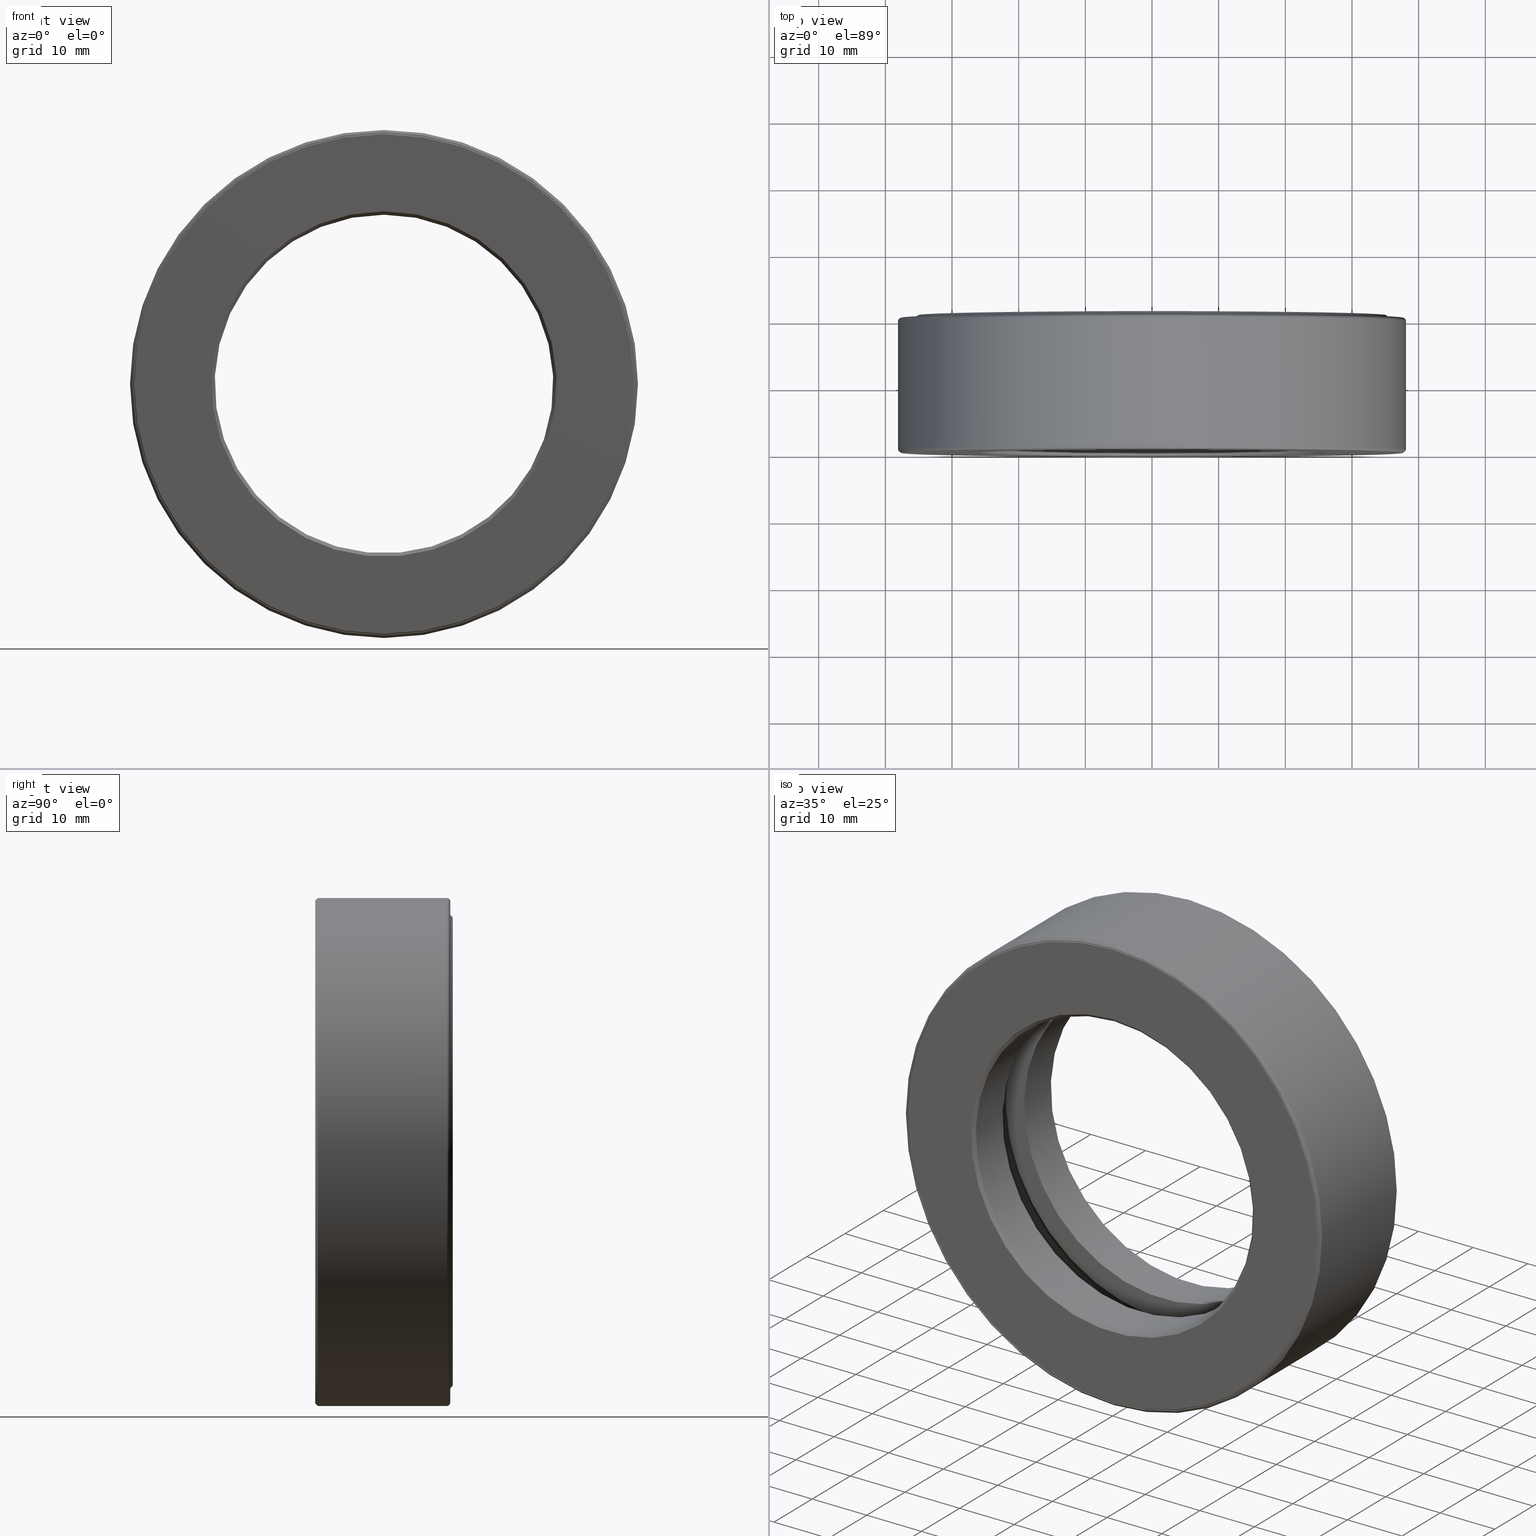
[diagram: canonical four-view strip — front | top / right | iso, engineering-drawing reading convention]
A machine part, canonical four-view strip (front | top / right | iso — engineering-drawing reading convention). The complete STEP part file that produces these views, byte-faithful:
ISO-10303-21;
HEADER;
FILE_DESCRIPTION (( 'STEP AP203' ),
    '1' );
FILE_NAME ('T-100-31.step',
    '2016-06-29T18:27:30',
    ( '' ),
    ( '' ),
    'SwSTEP 2.0',
    'SolidWorks 2016',
    '' );
FILE_SCHEMA (( 'CONFIG_CONTROL_DESIGN' ));
ENDSEC;

DATA;
#1 = CARTESIAN_POINT ( 'NONE',  ( 0.0000000000000000000, 0.4062499999999997800, 0.0000000000000000000 ) ) ;
#2 = AXIS2_PLACEMENT_3D ( 'NONE', #73, #299, #168 ) ;
#3 = VERTEX_POINT ( 'NONE', #367 ) ;
#4 = FACE_OUTER_BOUND ( 'NONE', #173, .T. ) ;
#5 = ORIENTED_EDGE ( 'NONE', *, *, #339, .T. ) ;
#6 = CARTESIAN_POINT ( 'NONE',  ( 0.0000000000000000000, -8.312292382913186900E-017, 0.0000000000000000000 ) ) ;
#7 = ADVANCED_FACE ( 'NONE', ( #489, #521 ), #383, .T. ) ;
#8 = EDGE_LOOP ( 'NONE', ( #469 ) ) ;
#9 = EDGE_CURVE ( 'NONE', #210, #210, #354, .T. ) ;
#10 = DIRECTION ( 'NONE',  ( -0.0000000000000000000, 1.000000000000000000, -0.0000000000000000000 ) ) ;
#11 = FACE_BOUND ( 'NONE', #212, .T. ) ;
#12 = ADVANCED_FACE ( 'NONE', ( #256, #128 ), #301, .T. ) ;
#13 = EDGE_LOOP ( 'NONE', ( #587 ) ) ;
#14 = AXIS2_PLACEMENT_3D ( 'NONE', #453, #305, #446 ) ;
#15 = EDGE_CURVE ( 'NONE', #3, #3, #508, .T. ) ;
#16 = VERTEX_POINT ( 'NONE', #499 ) ;
#17 = EDGE_LOOP ( 'NONE', ( #285 ) ) ;
#18 = ORIENTED_EDGE ( 'NONE', *, *, #455, .F. ) ;
#19 = DIRECTION ( 'NONE',  ( 0.0000000000000000000, 0.0000000000000000000, 1.000000000000000000 ) ) ;
#20 = AXIS2_PLACEMENT_3D ( 'NONE', #253, #321, #125 ) ;
#21 =( NAMED_UNIT ( * ) SI_UNIT ( $, .STERADIAN. ) SOLID_ANGLE_UNIT ( ) );
#22 = DIRECTION ( 'NONE',  ( 0.0000000000000000000, 0.0000000000000000000, 1.000000000000000000 ) ) ;
#23 = VERTEX_POINT ( 'NONE', #115 ) ;
#24 = FACE_BOUND ( 'NONE', #490, .T. ) ;
#25 =( LENGTH_UNIT ( ) NAMED_UNIT ( * ) SI_UNIT ( $, .METRE. ) );
#26 = CARTESIAN_POINT ( 'NONE',  ( 0.0000000000000000000, 0.5187499999999997100, 0.0000000000000000000 ) ) ;
#27 = ORIENTED_EDGE ( 'NONE', *, *, #546, .F. ) ;
#28 = DIRECTION ( 'NONE',  ( 0.0000000000000000000, 0.0000000000000000000, 1.000000000000000000 ) ) ;
#29 = DATE_TIME_ROLE ( 'classification_date' ) ;
#30 = CARTESIAN_POINT ( 'NONE',  ( 0.0000000000000000000, -8.216886543443291800E-017, 0.0000000000000000000 ) ) ;
#31 = APPROVAL_PERSON_ORGANIZATION ( #566, #515, #297 ) ;
#32 = DIRECTION ( 'NONE',  ( -0.0000000000000000000, 1.000000000000000000, -0.0000000000000000000 ) ) ;
#33 = ORIENTED_EDGE ( 'NONE', *, *, #105, .T. ) ;
#34 = AXIS2_PLACEMENT_3D ( 'NONE', #36, #252, #510 ) ;
#35 = EDGE_LOOP ( 'NONE', ( #265 ) ) ;
#36 = CARTESIAN_POINT ( 'NONE',  ( 0.0000000000000000000, 0.8125000000000000000, 0.0000000000000000000 ) ) ;
#37 = VERTEX_POINT ( 'NONE', #178 ) ;
#38 = TOROIDAL_SURFACE ( 'NONE', #476, 1.283499999999999900, 0.1874999999999999400 ) ;
#39 = CLOSED_SHELL ( 'NONE', ( #472, #182, #85, #278, #528, #50, #427, #332, #328, #524, #434, #382, #143, #55, #479, #189 ) ) ;
#40 = DIRECTION ( 'NONE',  ( 0.0000000000000000000, 0.0000000000000000000, 1.000000000000000000 ) ) ;
#41 = AXIS2_PLACEMENT_3D ( 'NONE', #356, #123, #69 ) ;
#42 = DIRECTION ( 'NONE',  ( -0.0000000000000000000, 1.000000000000000000, -0.0000000000000000000 ) ) ;
#43 = CARTESIAN_POINT ( 'NONE',  ( 0.0000000000000000000, 0.7774999999999998600, 1.420000000000000200 ) ) ;
#44 = ORIENTED_EDGE ( 'NONE', *, *, #346, .T. ) ;
#45 = EDGE_LOOP ( 'NONE', ( #344 ) ) ;
#46 = EDGE_CURVE ( 'NONE', #518, #518, #501, .T. ) ;
#47 = DIRECTION ( 'NONE',  ( -0.0000000000000000000, 1.000000000000000000, 0.0000000000000000000 ) ) ;
#48 = AXIS2_PLACEMENT_3D ( 'NONE', #572, #232, #576 ) ;
#49 = DIRECTION ( 'NONE',  ( 0.0000000000000000000, -1.000000000000000000, 0.0000000000000000000 ) ) ;
#50 = ADVANCED_FACE ( 'NONE', ( #422, #482 ), #461, .F. ) ;
#51 = ORGANIZATION ( 'UNSPECIFIED', 'UNSPECIFIED', '' ) ;
#52 = CIRCLE ( 'NONE', #396, 1.000000000000000000 ) ;
#53 = DIRECTION ( 'NONE',  ( 1.000000000000000000, 0.0000000000000000000, -1.047444401652939500E-014 ) ) ;
#54 = ORIENTED_EDGE ( 'NONE', *, *, #93, .F. ) ;
#55 = ADVANCED_FACE ( 'NONE', ( #567, #359 ), #227, .F. ) ;
#56 = EDGE_CURVE ( 'NONE', #156, #156, #349, .T. ) ;
#57 = CARTESIAN_POINT ( 'NONE',  ( 0.0000000000000000000, -8.323599355695802500E-017, 0.0000000000000000000 ) ) ;
#58 = PERSON_AND_ORGANIZATION ( #487, #51 ) ;
#59 = CIRCLE ( 'NONE', #277, 1.480000000000000000 ) ;
#60 = EDGE_LOOP ( 'NONE', ( #247 ) ) ;
#61 = AXIS2_PLACEMENT_3D ( 'NONE', #314, #415, #130 ) ;
#62 = EDGE_CURVE ( 'NONE', #440, #440, #179, .T. ) ;
#63 = FACE_OUTER_BOUND ( 'NONE', #35, .T. ) ;
#64 = CLOSED_SHELL ( 'NONE', ( #183 ) ) ;
#65 = CARTESIAN_POINT ( 'NONE',  ( 0.0000000000000000000, 6.829619984160658000E-017, 1.019999999999999800 ) ) ;
#66 = DIRECTION ( 'NONE',  ( -0.0000000000000000000, 1.000000000000000000, -0.0000000000000000000 ) ) ;
#67 = SHAPE_DEFINITION_REPRESENTATION ( #450, #529 ) ;
#68 = AXIS2_PLACEMENT_3D ( 'NONE', #421, #560, #464 ) ;
#69 = DIRECTION ( 'NONE',  ( 0.0000000000000000000, 0.0000000000000000000, 1.000000000000000000 ) ) ;
#70 = ORIENTED_EDGE ( 'NONE', *, *, #428, .T. ) ;
#71 = ORIENTED_EDGE ( 'NONE', *, *, #279, .T. ) ;
#72 = DIRECTION ( 'NONE',  ( -0.0000000000000000000, 1.000000000000000000, -0.0000000000000000000 ) ) ;
#73 = CARTESIAN_POINT ( 'NONE',  ( 0.0000000000000000000, 0.0000000000000000000, 0.0000000000000000000 ) ) ;
#74 = VERTEX_POINT ( 'NONE', #161 ) ;
#75 = FACE_OUTER_BOUND ( 'NONE', #135, .T. ) ;
#76 = AXIS2_PLACEMENT_3D ( 'NONE', #242, #389, #582 ) ;
#77 = EDGE_LOOP ( 'NONE', ( #509 ) ) ;
#78 = DIRECTION ( 'NONE',  ( 0.0000000000000000000, 0.0000000000000000000, 1.000000000000000000 ) ) ;
#79 = CARTESIAN_POINT ( 'NONE',  ( 1.122951057337007100E-033, -8.317945869304494700E-017, 0.0000000000000000000 ) ) ;
#80 = FACE_OUTER_BOUND ( 'NONE', #151, .T. ) ;
#81 = DATE_AND_TIME ( #380, #186 ) ;
#82 = EDGE_LOOP ( 'NONE', ( #552 ) ) ;
#83 = ORIENTED_EDGE ( 'NONE', *, *, #124, .F. ) ;
#84 = CARTESIAN_POINT ( 'NONE',  ( 0.0000000000000000000, 0.2937499999999999600, 1.133499999999999700 ) ) ;
#85 = ADVANCED_FACE ( 'NONE', ( #114, #192 ), #475, .F. ) ;
#86 = CARTESIAN_POINT ( 'NONE',  ( 0.0000000000000000000, 0.5187499999999997100, 1.472999999999999900 ) ) ;
#87 = AXIS2_PLACEMENT_3D ( 'NONE', #325, #90, #229 ) ;
#88 = CARTESIAN_POINT ( 'NONE',  ( 0.0000000000000000000, 0.02000000000000033300, 0.0000000000000000000 ) ) ;
#89 = VERTEX_POINT ( 'NONE', #549 ) ;
#90 = DIRECTION ( 'NONE',  ( 0.0000000000000000000, -1.000000000000000000, 0.0000000000000000000 ) ) ;
#91 = ORIENTED_EDGE ( 'NONE', *, *, #213, .F. ) ;
#92 = CLOSED_SHELL ( 'NONE', ( #225 ) ) ;
#93 = EDGE_CURVE ( 'NONE', #505, #505, #373, .T. ) ;
#94 = FACE_OUTER_BOUND ( 'NONE', #147, .T. ) ;
#95 = COORDINATED_UNIVERSAL_TIME_OFFSET ( 5, 0, .BEHIND. ) ;
#96 = PRODUCT ( 'T-100-31', 'T-100-31', '', ( #400 ) ) ;
#97 = ORIENTED_EDGE ( 'NONE', *, *, #56, .T. ) ;
#98 = CLOSED_SHELL ( 'NONE', ( #233 ) ) ;
#99 =( GEOMETRIC_REPRESENTATION_CONTEXT ( 3 ) GLOBAL_UNCERTAINTY_ASSIGNED_CONTEXT ( ( #195 ) ) GLOBAL_UNIT_ASSIGNED_CONTEXT ( ( #162, #241, #21 ) ) REPRESENTATION_CONTEXT ( 'NONE', 'WORKASPACE' ) );
#100 = DIRECTION ( 'NONE',  ( 0.0000000000000000000, 0.0000000000000000000, 1.000000000000000000 ) ) ;
#101 = DATE_AND_TIME ( #556, #369 ) ;
#102 = SPHERICAL_SURFACE ( 'NONE', #283, 0.1874999999999999400 ) ;
#103 = ORIENTED_EDGE ( 'NONE', *, *, #93, .T. ) ;
#104 = EDGE_LOOP ( 'NONE', ( #477 ) ) ;
#105 = EDGE_CURVE ( 'NONE', #37, #37, #59, .T. ) ;
#106 = DATE_TIME_ROLE ( 'creation_date' ) ;
#107 = CARTESIAN_POINT ( 'NONE',  ( 4.481316298405160600E-015, 0.4062499999999997800, 1.283499999999999900 ) ) ;
#108 = APPLICATION_CONTEXT ( 'configuration controlled 3d designs of mechanical parts and assemblies' ) ;
#109 = DIRECTION ( 'NONE',  ( 0.0000000000000000000, 0.0000000000000000000, 1.000000000000000000 ) ) ;
#110 = CARTESIAN_POINT ( 'NONE',  ( 0.0000000000000000000, 0.2937499999999999600, 0.0000000000000000000 ) ) ;
#111 = FACE_OUTER_BOUND ( 'NONE', #398, .T. ) ;
#112 = CARTESIAN_POINT ( 'NONE',  ( 0.0000000000000000000, 0.7245000000000004800, 0.0000000000000000000 ) ) ;
#113 = CIRCLE ( 'NONE', #438, 1.480000000000000000 ) ;
#114 = FACE_OUTER_BOUND ( 'NONE', #257, .T. ) ;
#115 = CARTESIAN_POINT ( 'NONE',  ( 0.0000000000000000000, 0.7974999999999998800, 1.480000000000000000 ) ) ;
#116 = CARTESIAN_POINT ( 'NONE',  ( 0.0000000000000000000, 0.0000000000000000000, 0.0000000000000000000 ) ) ;
#117 = CARTESIAN_POINT ( 'NONE',  ( 0.0000000000000000000, 0.7924999999999996500, 0.0000000000000000000 ) ) ;
#118 = DIRECTION ( 'NONE',  ( 0.0000000000000000000, 0.0000000000000000000, 1.000000000000000000 ) ) ;
#119 = AXIS2_PLACEMENT_3D ( 'NONE', #523, #49, #478 ) ;
#120 = CONICAL_SURFACE ( 'NONE', #532, 1.474999999999999600, 0.7853981633974469500 ) ;
#121 = EDGE_LOOP ( 'NONE', ( #311 ) ) ;
#122 = ORIENTED_EDGE ( 'NONE', *, *, #546, .T. ) ;
#123 = DIRECTION ( 'NONE',  ( -0.0000000000000000000, 1.000000000000000000, -0.0000000000000000000 ) ) ;
#124 = EDGE_CURVE ( 'NONE', #526, #526, #436, .T. ) ;
#125 = DIRECTION ( 'NONE',  ( 0.0000000000000000000, -0.0000000000000000000, -1.000000000000000000 ) ) ;
#126 = FACE_OUTER_BOUND ( 'NONE', #337, .T. ) ;
#127 = FACE_BOUND ( 'NONE', #437, .T. ) ;
#128 = FACE_OUTER_BOUND ( 'NONE', #17, .T. ) ;
#129 = DIRECTION ( 'NONE',  ( 0.0000000000000000000, 0.0000000000000000000, 1.000000000000000000 ) ) ;
#130 = DIRECTION ( 'NONE',  ( 0.0000000000000000000, 0.0000000000000000000, 1.000000000000000000 ) ) ;
#131 = AXIS2_PLACEMENT_3D ( 'NONE', #207, #307, #454 ) ;
#132 = DIRECTION ( 'NONE',  ( 0.0000000000000000000, 0.0000000000000000000, 1.000000000000000000 ) ) ;
#133 = VERTEX_POINT ( 'NONE', #588 ) ;
#134 = ADVANCED_FACE ( 'NONE', ( #217, #579 ), #142, .T. ) ;
#135 = EDGE_LOOP ( 'NONE', ( #604 ) ) ;
#136 = DIRECTION ( 'NONE',  ( -0.0000000000000000000, 1.000000000000000000, -0.0000000000000000000 ) ) ;
#137 = ORIENTED_EDGE ( 'NONE', *, *, #346, .F. ) ;
#138 = CARTESIAN_POINT ( 'NONE',  ( 0.0000000000000000000, -8.216886543443291800E-017, 1.474999999999999600 ) ) ;
#139 = DIRECTION ( 'NONE',  ( 0.0000000000000000000, 0.0000000000000000000, 1.000000000000000000 ) ) ;
#140 = ADVANCED_FACE ( 'NONE', ( #388, #302 ), #481, .F. ) ;
#141 = AXIS2_PLACEMENT_3D ( 'NONE', #463, #42, #174 ) ;
#142 = PLANE ( 'NONE',  #87 ) ;
#143 = ADVANCED_FACE ( 'NONE', ( #591, #534 ), #333, .F. ) ;
#144 = VERTEX_POINT ( 'NONE', #65 ) ;
#145 = FACE_OUTER_BOUND ( 'NONE', #413, .T. ) ;
#146 = APPROVAL_PERSON_ORGANIZATION ( #310, #525, #492 ) ;
#147 = EDGE_LOOP ( 'NONE', ( #83 ) ) ;
#148 = MANIFOLD_SOLID_BREP ( 'Revolve3', #92 ) ;
#149 = PERSON_AND_ORGANIZATION ( #487, #51 ) ;
#150 = ORIENTED_EDGE ( 'NONE', *, *, #364, .F. ) ;
#151 = EDGE_LOOP ( 'NONE', ( #180 ) ) ;
#152 = AXIS2_PLACEMENT_3D ( 'NONE', #26, #539, #239 ) ;
#153 = DIRECTION ( 'NONE',  ( 0.0000000000000000000, 0.0000000000000000000, -1.000000000000000000 ) ) ;
#154 = CARTESIAN_POINT ( 'NONE',  ( 0.0000000000000000000, 0.5187499999999997100, 1.133499999999999700 ) ) ;
#155 = DIRECTION ( 'NONE',  ( -3.491481338843131800E-015, 0.0000000000000000000, -1.000000000000000000 ) ) ;
#156 = VERTEX_POINT ( 'NONE', #563 ) ;
#157 = FACE_OUTER_BOUND ( 'NONE', #294, .T. ) ;
#158 = APPROVAL_ROLE ( '' ) ;
#159 = EDGE_LOOP ( 'NONE', ( #33 ) ) ;
#160 = CC_DESIGN_APPROVAL ( #417, ( #259 ) ) ;
#161 = CARTESIAN_POINT ( 'NONE',  ( 0.0000000000000000000, 0.8124999999999998900, 1.385000000000000000 ) ) ;
#162 =( CONVERSION_BASED_UNIT ( 'INCH', #445 ) LENGTH_UNIT ( ) NAMED_UNIT ( #418 ) );
#163 = CARTESIAN_POINT ( 'NONE',  ( 0.0000000000000000000, 0.5187499999999999300, 0.0000000000000000000 ) ) ;
#164 = MANIFOLD_SOLID_BREP ( 'BALLS[2]', #235 ) ;
#165 = AXIS2_PLACEMENT_3D ( 'NONE', #548, #504, #554 ) ;
#166 = ORIENTED_EDGE ( 'NONE', *, *, #324, .F. ) ;
#167 = ORIENTED_EDGE ( 'NONE', *, *, #244, .T. ) ;
#168 = DIRECTION ( 'NONE',  ( 0.0000000000000000000, 0.0000000000000000000, 1.000000000000000000 ) ) ;
#169 = EDGE_CURVE ( 'NONE', #395, #395, #113, .T. ) ;
#170 = DIRECTION ( 'NONE',  ( 0.0000000000000000000, 0.0000000000000000000, 1.000000000000000000 ) ) ;
#171 = VERTEX_POINT ( 'NONE', #138 ) ;
#172 = CONICAL_SURFACE ( 'NONE', #231, 1.385000000000000000, 0.7853981633974498300 ) ;
#173 = EDGE_LOOP ( 'NONE', ( #5 ) ) ;
#174 = DIRECTION ( 'NONE',  ( 0.0000000000000000000, 0.0000000000000000000, 1.000000000000000000 ) ) ;
#175 = DIRECTION ( 'NONE',  ( 0.0000000000000000000, 0.0000000000000000000, 1.000000000000000000 ) ) ;
#176 = CARTESIAN_POINT ( 'NONE',  ( 0.0000000000000000000, 0.01499999999999984000, 0.0000000000000000000 ) ) ;
#177 = COORDINATED_UNIVERSAL_TIME_OFFSET ( 5, 0, .BEHIND. ) ;
#178 = CARTESIAN_POINT ( 'NONE',  ( 0.0000000000000000000, -8.312292382913186900E-017, 1.480000000000000000 ) ) ;
#179 = CIRCLE ( 'NONE', #208, 1.472999999999999900 ) ;
#180 = ORIENTED_EDGE ( 'NONE', *, *, #300, .T. ) ;
#181 = DIRECTION ( 'NONE',  ( 1.047444401652939500E-014, 0.0000000000000000000, 1.000000000000000000 ) ) ;
#182 = ADVANCED_FACE ( 'NONE', ( #127, #191 ), #187, .F. ) ;
#183 = ADVANCED_FACE ( 'NONE', ( ), #272, .T. ) ;
#184 = VERTEX_POINT ( 'NONE', #84 ) ;
#185 = CONICAL_SURFACE ( 'NONE', #76, 1.485000000000000100, 0.7853981633974409500 ) ;
#186 = LOCAL_TIME ( 14, 27, 30.00000000000000000, #95 ) ;
#187 = PLANE ( 'NONE',  #119 ) ;
#188 = EDGE_LOOP ( 'NONE', ( #443 ) ) ;
#189 = ADVANCED_FACE ( 'NONE', ( #498, #603 ), #430, .F. ) ;
#190 = PERSON_AND_ORGANIZATION ( #487, #51 ) ;
#191 = FACE_OUTER_BOUND ( 'NONE', #273, .T. ) ;
#192 = FACE_OUTER_BOUND ( 'NONE', #8, .T. ) ;
#193 = AXIS2_PLACEMENT_3D ( 'NONE', #79, #571, #276 ) ;
#194 = EDGE_LOOP ( 'NONE', ( #27 ) ) ;
#195 = UNCERTAINTY_MEASURE_WITH_UNIT (LENGTH_MEASURE( 1.000000000000000100E-005 ), #162, 'distance_accuracy_value', 'NONE');
#196 = FACE_OUTER_BOUND ( 'NONE', #581, .T. ) ;
#197 = ORIENTED_EDGE ( 'NONE', *, *, #200, .T. ) ;
#198 = AXIS2_PLACEMENT_3D ( 'NONE', #110, #72, #562 ) ;
#199 = APPLICATION_CONTEXT ( 'configuration controlled 3d designs of mechanical parts and assemblies' ) ;
#200 = EDGE_CURVE ( 'NONE', #262, #262, #480, .T. ) ;
#201 = DIRECTION ( 'NONE',  ( -0.0000000000000000000, 1.000000000000000000, -0.0000000000000000000 ) ) ;
#202 = CIRCLE ( 'NONE', #292, 1.385000000000000000 ) ;
#203 = APPROVAL_STATUS ( 'not_yet_approved' ) ;
#204 = EDGE_LOOP ( 'NONE', ( #407 ) ) ;
#205 = ORIENTED_EDGE ( 'NONE', *, *, #428, .F. ) ;
#206 = DIRECTION ( 'NONE',  ( 0.0000000000000000000, 0.0000000000000000000, 1.000000000000000000 ) ) ;
#207 = CARTESIAN_POINT ( 'NONE',  ( 0.0000000000000000000, 6.829619984160658000E-017, 0.0000000000000000000 ) ) ;
#208 = AXIS2_PLACEMENT_3D ( 'NONE', #558, #568, #215 ) ;
#209 = CALENDAR_DATE ( 2016, 29, 6 ) ;
#210 = VERTEX_POINT ( 'NONE', #516 ) ;
#211 = EDGE_LOOP ( 'NONE', ( #592 ) ) ;
#212 = EDGE_LOOP ( 'NONE', ( #71 ) ) ;
#213 = EDGE_CURVE ( 'NONE', #184, #184, #602, .T. ) ;
#214 = DIRECTION ( 'NONE',  ( 0.0000000000000000000, 0.0000000000000000000, 1.000000000000000000 ) ) ;
#215 = DIRECTION ( 'NONE',  ( 0.0000000000000000000, 0.0000000000000000000, 1.000000000000000000 ) ) ;
#216 = CIRCLE ( 'NONE', #357, 1.480000000000000000 ) ;
#217 = FACE_BOUND ( 'NONE', #522, .T. ) ;
#218 = DIRECTION ( 'NONE',  ( -0.0000000000000000000, 1.000000000000000000, -0.0000000000000000000 ) ) ;
#219 = AXIS2_PLACEMENT_3D ( 'NONE', #312, #517, #316 ) ;
#220 = CARTESIAN_POINT ( 'NONE',  ( 0.0000000000000000000, 0.7974999999999998800, 0.0000000000000000000 ) ) ;
#221 = DIRECTION ( 'NONE',  ( 0.0000000000000000000, 0.0000000000000000000, 1.000000000000000000 ) ) ;
#222 = CALENDAR_DATE ( 2016, 29, 6 ) ;
#223 = CARTESIAN_POINT ( 'NONE',  ( -1.283499999999999900, 0.4062499999999997800, 0.0000000000000000000 ) ) ;
#224 = FACE_OUTER_BOUND ( 'NONE', #580, .T. ) ;
#225 = ADVANCED_FACE ( 'NONE', ( ), #102, .T. ) ;
#226 = CC_DESIGN_PERSON_AND_ORGANIZATION_ASSIGNMENT ( #315, #503, ( #96 ) ) ;
#227 = CONICAL_SURFACE ( 'NONE', #219, 0.9999999999999998900, 0.7853981633974397300 ) ;
#228 = EDGE_LOOP ( 'NONE', ( #330 ) ) ;
#229 = DIRECTION ( 'NONE',  ( 0.0000000000000000000, -0.0000000000000000000, -1.000000000000000000 ) ) ;
#230 = ADVANCED_FACE ( 'NONE', ( ), #457, .T. ) ;
#231 = AXIS2_PLACEMENT_3D ( 'NONE', #500, #341, #153 ) ;
#232 = DIRECTION ( 'NONE',  ( 0.0000000000000000000, -1.000000000000000000, 0.0000000000000000000 ) ) ;
#233 = ADVANCED_FACE ( 'NONE', ( ), #353, .T. ) ;
#234 = CIRCLE ( 'NONE', #152, 1.433499999999999800 ) ;
#235 = CLOSED_SHELL ( 'NONE', ( #230 ) ) ;
#236 = CARTESIAN_POINT ( 'NONE',  ( 0.0000000000000000000, 0.7774999999999998600, 0.0000000000000000000 ) ) ;
#237 = CIRCLE ( 'NONE', #375, 1.000000000000000000 ) ;
#238 = AXIS2_PLACEMENT_3D ( 'NONE', #260, #365, #362 ) ;
#239 = DIRECTION ( 'NONE',  ( 0.0000000000000000000, 0.0000000000000000000, 1.000000000000000000 ) ) ;
#240 = CLOSED_SHELL ( 'NONE', ( #12, #266, #134, #368, #140, #376, #269, #7 ) ) ;
#241 =( NAMED_UNIT ( * ) PLANE_ANGLE_UNIT ( ) SI_UNIT ( $, .RADIAN. ) );
#242 = CARTESIAN_POINT ( 'NONE',  ( 0.0000000000000000000, -8.323599355695802500E-017, 0.0000000000000000000 ) ) ;
#243 = DIRECTION ( 'NONE',  ( 0.0000000000000000000, 0.0000000000000000000, -1.000000000000000000 ) ) ;
#244 = EDGE_CURVE ( 'NONE', #326, #326, #234, .T. ) ;
#245 = APPLICATION_PROTOCOL_DEFINITION ( 'international standard', 'config_control_design', 1994, #199 ) ;
#246 = FACE_BOUND ( 'NONE', #575, .T. ) ;
#247 = ORIENTED_EDGE ( 'NONE', *, *, #56, .F. ) ;
#248 = CARTESIAN_POINT ( 'NONE',  ( 0.0000000000000000000, 0.005000000000000288100, 0.0000000000000000000 ) ) ;
#249 = PERSON_AND_ORGANIZATION_ROLE ( 'creator' ) ;
#250 = DIRECTION ( 'NONE',  ( -0.0000000000000000000, 1.000000000000000000, -0.0000000000000000000 ) ) ;
#251 = AXIS2_PLACEMENT_3D ( 'NONE', #57, #540, #484 ) ;
#252 = DIRECTION ( 'NONE',  ( -0.0000000000000000000, 1.000000000000000000, -0.0000000000000000000 ) ) ;
#253 = CARTESIAN_POINT ( 'NONE',  ( 0.0000000000000000000, 0.5187499999999997100, 0.0000000000000000000 ) ) ;
#254 = VERTEX_POINT ( 'NONE', #264 ) ;
#255 = CYLINDRICAL_SURFACE ( 'NONE', #541, 1.420000000000000200 ) ;
#256 = FACE_BOUND ( 'NONE', #284, .T. ) ;
#257 = EDGE_LOOP ( 'NONE', ( #137 ) ) ;
#258 = EDGE_CURVE ( 'NONE', #254, #254, #358, .T. ) ;
#259 = PRODUCT_DEFINITION ( 'UNKNOWN', '', #494, #577 ) ;
#260 = CARTESIAN_POINT ( 'NONE',  ( 0.0000000000000000000, 0.0000000000000000000, 0.0000000000000000000 ) ) ;
#261 = AXIS2_PLACEMENT_3D ( 'NONE', #236, #286, #22 ) ;
#262 = VERTEX_POINT ( 'NONE', #605 ) ;
#263 = CIRCLE ( 'NONE', #61, 1.480000000000000000 ) ;
#264 = CARTESIAN_POINT ( 'NONE',  ( 0.0000000000000000000, 0.7245000000000004800, 1.472999999999999900 ) ) ;
#265 = ORIENTED_EDGE ( 'NONE', *, *, #378, .T. ) ;
#266 = ADVANCED_FACE ( 'NONE', ( #63, #557 ), #584, .F. ) ;
#267 = DIRECTION ( 'NONE',  ( 0.0000000000000000000, -1.000000000000000000, 0.0000000000000000000 ) ) ;
#268 = MANIFOLD_SOLID_BREP ( 'BALLS[3]', #64 ) ;
#269 = ADVANCED_FACE ( 'NONE', ( #224, #474 ), #172, .T. ) ;
#270 = CC_DESIGN_APPROVAL ( #515, ( #494 ) ) ;
#271 = CALENDAR_DATE ( 2016, 29, 6 ) ;
#272 = SPHERICAL_SURFACE ( 'NONE', #331, 0.1874999999999999400 ) ;
#273 = EDGE_LOOP ( 'NONE', ( #44 ) ) ;
#274 = DIRECTION ( 'NONE',  ( 0.0000000000000000000, 0.0000000000000000000, 1.000000000000000000 ) ) ;
#275 = EDGE_LOOP ( 'NONE', ( #318 ) ) ;
#276 = DIRECTION ( 'NONE',  ( 0.0000000000000000000, 0.0000000000000000000, 1.000000000000000000 ) ) ;
#277 = AXIS2_PLACEMENT_3D ( 'NONE', #6, #10, #329 ) ;
#278 = ADVANCED_FACE ( 'NONE', ( #196, #246 ), #536, .F. ) ;
#279 = EDGE_CURVE ( 'NONE', #171, #171, #387, .T. ) ;
#280 = CARTESIAN_POINT ( 'NONE',  ( 0.0000000000000000000, 0.7924999999999996500, 0.0000000000000000000 ) ) ;
#281 = CIRCLE ( 'NONE', #131, 1.019999999999999800 ) ;
#282 = EDGE_LOOP ( 'NONE', ( #205 ) ) ;
#283 = AXIS2_PLACEMENT_3D ( 'NONE', #223, #243, #361 ) ;
#284 = EDGE_LOOP ( 'NONE', ( #167 ) ) ;
#285 = ORIENTED_EDGE ( 'NONE', *, *, #62, .F. ) ;
#286 = DIRECTION ( 'NONE',  ( -0.0000000000000000000, 1.000000000000000000, 0.0000000000000000000 ) ) ;
#287 = CARTESIAN_POINT ( 'NONE',  ( 0.0000000000000000000, -8.216886543443291800E-017, 0.0000000000000000000 ) ) ;
#288 = CC_DESIGN_APPROVAL ( #525, ( #483 ) ) ;
#289 = PERSON_AND_ORGANIZATION_ROLE ( 'design_supplier' ) ;
#290 = COORDINATED_UNIVERSAL_TIME_OFFSET ( 5, 0, .BEHIND. ) ;
#291 = CIRCLE ( 'NONE', #34, 1.020000000000000200 ) ;
#292 = AXIS2_PLACEMENT_3D ( 'NONE', #555, #201, #596 ) ;
#293 = CARTESIAN_POINT ( 'NONE',  ( 0.0000000000000000000, 0.8125000000000000000, 1.020000000000000200 ) ) ;
#294 = EDGE_LOOP ( 'NONE', ( #150 ) ) ;
#295 = AXIS2_PLACEMENT_3D ( 'NONE', #287, #542, #19 ) ;
#296 = DIRECTION ( 'NONE',  ( -0.0000000000000000000, 1.000000000000000000, 0.0000000000000000000 ) ) ;
#297 = APPROVAL_ROLE ( '' ) ;
#298 = VERTEX_POINT ( 'NONE', #293 ) ;
#299 = DIRECTION ( 'NONE',  ( -0.0000000000000000000, 1.000000000000000000, -0.0000000000000000000 ) ) ;
#300 = EDGE_CURVE ( 'NONE', #429, #429, #237, .T. ) ;
#301 = PLANE ( 'NONE',  #20 ) ;
#302 = FACE_BOUND ( 'NONE', #531, .T. ) ;
#303 = ORIENTED_EDGE ( 'NONE', *, *, #339, .F. ) ;
#304 = CC_DESIGN_PERSON_AND_ORGANIZATION_ASSIGNMENT ( #583, #585, ( #494 ) ) ;
#305 = DIRECTION ( 'NONE',  ( -0.0000000000000000000, 1.000000000000000000, -0.0000000000000000000 ) ) ;
#306 = AXIS2_PLACEMENT_3D ( 'NONE', #220, #267, #606 ) ;
#307 = DIRECTION ( 'NONE',  ( -0.0000000000000000000, 1.000000000000000000, -0.0000000000000000000 ) ) ;
#308 = VERTEX_POINT ( 'NONE', #544 ) ;
#309 = FACE_OUTER_BOUND ( 'NONE', #468, .T. ) ;
#310 = PERSON_AND_ORGANIZATION ( #487, #51 ) ;
#311 = ORIENTED_EDGE ( 'NONE', *, *, #391, .T. ) ;
#312 = CARTESIAN_POINT ( 'NONE',  ( 0.0000000000000000000, 0.02000000000000033300, 0.0000000000000000000 ) ) ;
#313 = DIRECTION ( 'NONE',  ( -0.0000000000000000000, 1.000000000000000000, -0.0000000000000000000 ) ) ;
#314 = CARTESIAN_POINT ( 'NONE',  ( 0.0000000000000000000, 0.7974999999999998800, 0.0000000000000000000 ) ) ;
#315 = PERSON_AND_ORGANIZATION ( #487, #51 ) ;
#316 = DIRECTION ( 'NONE',  ( 0.0000000000000000000, 0.0000000000000000000, -1.000000000000000000 ) ) ;
#317 = CARTESIAN_POINT ( 'NONE',  ( 0.0000000000000000000, 0.2937499999999999000, 1.433499999999999800 ) ) ;
#318 = ORIENTED_EDGE ( 'NONE', *, *, #244, .F. ) ;
#319 = ORIENTED_EDGE ( 'NONE', *, *, #46, .T. ) ;
#320 = AXIS2_PLACEMENT_3D ( 'NONE', #112, #345, #109 ) ;
#321 = DIRECTION ( 'NONE',  ( 0.0000000000000000000, -1.000000000000000000, 0.0000000000000000000 ) ) ;
#322 = DIRECTION ( 'NONE',  ( 0.0000000000000000000, 0.0000000000000000000, 1.000000000000000000 ) ) ;
#323 = CARTESIAN_POINT ( 'NONE',  ( -3.326533943107158000E-032, -6.936332796413168700E-018, 0.0000000000000000000 ) ) ;
#324 = EDGE_CURVE ( 'NONE', #74, #74, #202, .T. ) ;
#325 = CARTESIAN_POINT ( 'NONE',  ( -5.307663470836483000E-016, 0.5187499999999998200, 0.0000000000000000000 ) ) ;
#326 = VERTEX_POINT ( 'NONE', #363 ) ;
#327 = TOROIDAL_SURFACE ( 'NONE', #41, 1.480000000000000000, 0.02000000000000005900 ) ;
#328 = ADVANCED_FACE ( 'NONE', ( #348, #24 ), #185, .T. ) ;
#329 = DIRECTION ( 'NONE',  ( 0.0000000000000000000, 0.0000000000000000000, 1.000000000000000000 ) ) ;
#330 = ORIENTED_EDGE ( 'NONE', *, *, #279, .F. ) ;
#331 = AXIS2_PLACEMENT_3D ( 'NONE', #381, #53, #181 ) ;
#332 = ADVANCED_FACE ( 'NONE', ( #126, #145 ), #441, .T. ) ;
#333 = PLANE ( 'NONE',  #519 ) ;
#334 = AXIS2_PLACEMENT_3D ( 'NONE', #352, #296, #449 ) ;
#335 = FACE_OUTER_BOUND ( 'NONE', #355, .T. ) ;
#336 = APPROVAL_DATE_TIME ( #81, #525 ) ;
#337 = EDGE_LOOP ( 'NONE', ( #432 ) ) ;
#338 = ORIENTED_EDGE ( 'NONE', *, *, #169, .F. ) ;
#339 = EDGE_CURVE ( 'NONE', #89, #89, #598, .T. ) ;
#340 = CC_DESIGN_PERSON_AND_ORGANIZATION_ASSIGNMENT ( #149, #289, ( #494 ) ) ;
#341 = DIRECTION ( 'NONE',  ( 0.0000000000000000000, -1.000000000000000000, 0.0000000000000000000 ) ) ;
#342 = DATE_AND_TIME ( #222, #486 ) ;
#343 = CYLINDRICAL_SURFACE ( 'NONE', #68, 1.000000000000000000 ) ;
#344 = ORIENTED_EDGE ( 'NONE', *, *, #324, .T. ) ;
#345 = DIRECTION ( 'NONE',  ( -0.0000000000000000000, 1.000000000000000000, -0.0000000000000000000 ) ) ;
#346 = EDGE_CURVE ( 'NONE', #133, #133, #216, .T. ) ;
#347 = CARTESIAN_POINT ( 'NONE',  ( 0.0000000000000000000, 0.2937500000000001200, 1.000000000000000000 ) ) ;
#348 = FACE_OUTER_BOUND ( 'NONE', #194, .T. ) ;
#349 = CIRCLE ( 'NONE', #141, 1.420000000000000200 ) ;
#350 = CARTESIAN_POINT ( 'NONE',  ( 0.0000000000000000000, 0.5187499999999997100, 0.0000000000000000000 ) ) ;
#351 = DIRECTION ( 'NONE',  ( 0.0000000000000000000, 0.0000000000000000000, 1.000000000000000000 ) ) ;
#352 = CARTESIAN_POINT ( 'NONE',  ( -3.040584239523583000E-016, 0.8124999999999998900, 0.0000000000000000000 ) ) ;
#353 = SPHERICAL_SURFACE ( 'NONE', #466, 0.1874999999999999400 ) ;
#354 = CIRCLE ( 'NONE', #385, 1.000000000000000000 ) ;
#355 = EDGE_LOOP ( 'NONE', ( #559 ) ) ;
#356 = CARTESIAN_POINT ( 'NONE',  ( 0.0000000000000000000, 0.7774999999999998600, 0.0000000000000000000 ) ) ;
#357 = AXIS2_PLACEMENT_3D ( 'NONE', #402, #597, #118 ) ;
#358 = CIRCLE ( 'NONE', #320, 1.472999999999999900 ) ;
#359 = FACE_BOUND ( 'NONE', #82, .T. ) ;
#360 = AXIS2_PLACEMENT_3D ( 'NONE', #350, #32, #351 ) ;
#361 = DIRECTION ( 'NONE',  ( 1.000000000000000000, 0.0000000000000000000, 0.0000000000000000000 ) ) ;
#362 = DIRECTION ( 'NONE',  ( 0.0000000000000000000, 0.0000000000000000000, 1.000000000000000000 ) ) ;
#363 = CARTESIAN_POINT ( 'NONE',  ( 0.0000000000000000000, 0.5187499999999997100, 1.433499999999999800 ) ) ;
#364 = EDGE_CURVE ( 'NONE', #16, #16, #52, .T. ) ;
#365 = DIRECTION ( 'NONE',  ( -0.0000000000000000000, 1.000000000000000000, -0.0000000000000000000 ) ) ;
#366 = CC_DESIGN_DATE_AND_TIME_ASSIGNMENT ( #342, #106, ( #259 ) ) ;
#367 = CARTESIAN_POINT ( 'NONE',  ( 0.0000000000000000000, 0.7774999999999998600, 1.500000000000000200 ) ) ;
#368 = ADVANCED_FACE ( 'NONE', ( #75, #157 ), #411, .F. ) ;
#369 = LOCAL_TIME ( 14, 27, 30.00000000000000000, #290 ) ;
#370 = DIRECTION ( 'NONE',  ( -0.0000000000000000000, 1.000000000000000000, -0.0000000000000000000 ) ) ;
#371 = CIRCLE ( 'NONE', #593, 1.499999999999999800 ) ;
#372 = CARTESIAN_POINT ( 'NONE',  ( 0.0000000000000000000, 0.7774999999999998600, 1.480000000000000000 ) ) ;
#373 = CIRCLE ( 'NONE', #485, 1.433499999999999800 ) ;
#374 = ORIENTED_EDGE ( 'NONE', *, *, #15, .T. ) ;
#375 = AXIS2_PLACEMENT_3D ( 'NONE', #393, #586, #401 ) ;
#376 = ADVANCED_FACE ( 'NONE', ( #589, #379 ), #408, .T. ) ;
#377 = CARTESIAN_POINT ( 'NONE',  ( 0.0000000000000000000, 0.7774999999999998600, 0.0000000000000000000 ) ) ;
#378 = EDGE_CURVE ( 'NONE', #473, #473, #431, .T. ) ;
#379 = FACE_BOUND ( 'NONE', #188, .T. ) ;
#380 = CALENDAR_DATE ( 2016, 29, 6 ) ;
#381 = CARTESIAN_POINT ( 'NONE',  ( -1.344394889521548400E-014, 0.4062499999999997800, -1.283499999999999900 ) ) ;
#382 = ADVANCED_FACE ( 'NONE', ( #309, #11 ), #120, .T. ) ;
#383 = CYLINDRICAL_SURFACE ( 'NONE', #165, 1.472999999999999900 ) ;
#384 = AXIS2_PLACEMENT_3D ( 'NONE', #419, #28, #547 ) ;
#385 = AXIS2_PLACEMENT_3D ( 'NONE', #117, #451, #175 ) ;
#386 = APPROVAL_PERSON_ORGANIZATION ( #190, #417, #158 ) ;
#387 = CIRCLE ( 'NONE', #295, 1.474999999999999600 ) ;
#388 = FACE_OUTER_BOUND ( 'NONE', #121, .T. ) ;
#389 = DIRECTION ( 'NONE',  ( -0.0000000000000000000, 1.000000000000000000, -0.0000000000000000000 ) ) ;
#390 = EDGE_LOOP ( 'NONE', ( #535 ) ) ;
#391 = EDGE_CURVE ( 'NONE', #298, #298, #291, .T. ) ;
#392 = PERSON_AND_ORGANIZATION_ROLE ( 'classification_officer' ) ;
#393 = CARTESIAN_POINT ( 'NONE',  ( 0.0000000000000000000, 0.2937500000000001200, 0.0000000000000000000 ) ) ;
#394 = DIRECTION ( 'NONE',  ( 6.982962677686263600E-015, -0.0000000000000000000, 1.000000000000000000 ) ) ;
#395 = VERTEX_POINT ( 'NONE', #372 ) ;
#396 = AXIS2_PLACEMENT_3D ( 'NONE', #163, #551, #170 ) ;
#397 = FACE_OUTER_BOUND ( 'NONE', #448, .T. ) ;
#398 = EDGE_LOOP ( 'NONE', ( #103 ) ) ;
#399 = AXIS2_PLACEMENT_3D ( 'NONE', #416, #313, #129 ) ;
#400 = MECHANICAL_CONTEXT ( 'NONE', #108, 'mechanical' ) ;
#401 = DIRECTION ( 'NONE',  ( 0.0000000000000000000, 0.0000000000000000000, 1.000000000000000000 ) ) ;
#402 = CARTESIAN_POINT ( 'NONE',  ( 0.0000000000000000000, 0.2937499999999998400, 0.0000000000000000000 ) ) ;
#403 = LOCAL_TIME ( 14, 27, 30.00000000000000000, #177 ) ;
#404 = CC_DESIGN_PERSON_AND_ORGANIZATION_ASSIGNMENT ( #58, #392, ( #483 ) ) ;
#405 = ORIENTED_EDGE ( 'NONE', *, *, #364, .T. ) ;
#406 = MANIFOLD_SOLID_BREP ( 'Revolve2[2]', #240 ) ;
#407 = ORIENTED_EDGE ( 'NONE', *, *, #105, .F. ) ;
#408 = PLANE ( 'NONE',  #334 ) ;
#409 = AXIS2_PLACEMENT_3D ( 'NONE', #280, #426, #274 ) ;
#410 = PERSON_AND_ORGANIZATION ( #487, #51 ) ;
#411 = CYLINDRICAL_SURFACE ( 'NONE', #2, 1.000000000000000000 ) ;
#412 = CARTESIAN_POINT ( 'NONE',  ( 0.0000000000000000000, 0.2937499999999999000, 0.0000000000000000000 ) ) ;
#413 = EDGE_LOOP ( 'NONE', ( #122 ) ) ;
#414 = DIRECTION ( 'NONE',  ( -0.0000000000000000000, 1.000000000000000000, -0.0000000000000000000 ) ) ;
#415 = DIRECTION ( 'NONE',  ( -0.0000000000000000000, 1.000000000000000000, -0.0000000000000000000 ) ) ;
#416 = CARTESIAN_POINT ( 'NONE',  ( 0.0000000000000000000, 0.7774999999999998600, 0.0000000000000000000 ) ) ;
#417 = APPROVAL ( #203, 'UNSPECIFIED' ) ;
#418 = DIMENSIONAL_EXPONENTS ( 1.000000000000000000, 0.0000000000000000000, 0.0000000000000000000, 0.0000000000000000000, 0.0000000000000000000, 0.0000000000000000000, 0.0000000000000000000 ) ;
#419 = CARTESIAN_POINT ( 'NONE',  ( 0.0000000000000000000, 0.0000000000000000000, 0.0000000000000000000 ) ) ;
#420 = DATE_AND_TIME ( #209, #403 ) ;
#421 = CARTESIAN_POINT ( 'NONE',  ( 0.0000000000000000000, 0.0000000000000000000, 0.0000000000000000000 ) ) ;
#422 = FACE_BOUND ( 'NONE', #60, .T. ) ;
#423 = AXIS2_PLACEMENT_3D ( 'NONE', #565, #470, #40 ) ;
#424 = EDGE_LOOP ( 'NONE', ( #97 ) ) ;
#425 = PLANE ( 'NONE',  #193 ) ;
#426 = DIRECTION ( 'NONE',  ( -0.0000000000000000000, 1.000000000000000000, -0.0000000000000000000 ) ) ;
#427 = ADVANCED_FACE ( 'NONE', ( #527, #397 ), #327, .T. ) ;
#428 = EDGE_CURVE ( 'NONE', #144, #144, #281, .T. ) ;
#429 = VERTEX_POINT ( 'NONE', #347 ) ;
#430 = PLANE ( 'NONE',  #48 ) ;
#431 = CIRCLE ( 'NONE', #360, 1.133499999999999700 ) ;
#432 = ORIENTED_EDGE ( 'NONE', *, *, #15, .F. ) ;
#433 = CC_DESIGN_SECURITY_CLASSIFICATION ( #483, ( #494 ) ) ;
#434 = ADVANCED_FACE ( 'NONE', ( #512, #4 ), #496, .F. ) ;
#435 = APPROVAL_DATE_TIME ( #420, #515 ) ;
#436 = CIRCLE ( 'NONE', #452, 0.9999999999999998900 ) ;
#437 = EDGE_LOOP ( 'NONE', ( #54 ) ) ;
#438 = AXIS2_PLACEMENT_3D ( 'NONE', #377, #370, #139 ) ;
#439 = DIRECTION ( 'NONE',  ( -1.000000000000000000, 0.0000000000000000000, 3.491481338843131800E-015 ) ) ;
#440 = VERTEX_POINT ( 'NONE', #86 ) ;
#441 = CYLINDRICAL_SURFACE ( 'NONE', #564, 1.499999999999999800 ) ;
#442 = APPROVAL_STATUS ( 'not_yet_approved' ) ;
#443 = ORIENTED_EDGE ( 'NONE', *, *, #391, .F. ) ;
#444 = APPLICATION_PROTOCOL_DEFINITION ( 'international standard', 'config_control_design', 1994, #108 ) ;
#445 = LENGTH_MEASURE_WITH_UNIT ( LENGTH_MEASURE( 0.02539999999999999900 ), #25 );
#446 = DIRECTION ( 'NONE',  ( 0.0000000000000000000, 0.0000000000000000000, 1.000000000000000000 ) ) ;
#447 = EDGE_LOOP ( 'NONE', ( #569 ) ) ;
#448 = EDGE_LOOP ( 'NONE', ( #374 ) ) ;
#449 = DIRECTION ( 'NONE',  ( 0.0000000000000000000, 0.0000000000000000000, 1.000000000000000000 ) ) ;
#450 = PRODUCT_DEFINITION_SHAPE ( 'NONE', 'NONE',  #259 ) ;
#451 = DIRECTION ( 'NONE',  ( -0.0000000000000000000, 1.000000000000000000, -0.0000000000000000000 ) ) ;
#452 = AXIS2_PLACEMENT_3D ( 'NONE', #88, #136, #530 ) ;
#453 = CARTESIAN_POINT ( 'NONE',  ( 0.0000000000000000000, 0.0000000000000000000, 0.0000000000000000000 ) ) ;
#454 = DIRECTION ( 'NONE',  ( 0.0000000000000000000, 0.0000000000000000000, 1.000000000000000000 ) ) ;
#455 = EDGE_CURVE ( 'NONE', #23, #23, #263, .T. ) ;
#456 = COORDINATED_UNIVERSAL_TIME_OFFSET ( 5, 0, .BEHIND. ) ;
#457 = SPHERICAL_SURFACE ( 'NONE', #573, 0.1874999999999999400 ) ;
#458 = DIRECTION ( 'NONE',  ( -0.0000000000000000000, 1.000000000000000000, -0.0000000000000000000 ) ) ;
#459 = MANIFOLD_SOLID_BREP ( 'BALLS[1]', #98 ) ;
#460 = ORIENTED_EDGE ( 'NONE', *, *, #258, .T. ) ;
#461 = PLANE ( 'NONE',  #306 ) ;
#462 = PRODUCT_RELATED_PRODUCT_CATEGORY ( 'detail', '', ( #96 ) ) ;
#463 = CARTESIAN_POINT ( 'NONE',  ( 0.0000000000000000000, 0.7974999999999998800, 0.0000000000000000000 ) ) ;
#464 = DIRECTION ( 'NONE',  ( 0.0000000000000000000, 0.0000000000000000000, 1.000000000000000000 ) ) ;
#465 = FACE_OUTER_BOUND ( 'NONE', #600, .T. ) ;
#466 = AXIS2_PLACEMENT_3D ( 'NONE', #107, #439, #155 ) ;
#467 = CARTESIAN_POINT ( 'NONE',  ( 0.0000000000000000000, 0.02000000000000033300, 0.9999999999999998900 ) ) ;
#468 = EDGE_LOOP ( 'NONE', ( #303 ) ) ;
#469 = ORIENTED_EDGE ( 'NONE', *, *, #169, .T. ) ;
#470 = DIRECTION ( 'NONE',  ( -0.0000000000000000000, 1.000000000000000000, -0.0000000000000000000 ) ) ;
#471 = DIRECTION ( 'NONE',  ( -0.0000000000000000000, 1.000000000000000000, -0.0000000000000000000 ) ) ;
#472 = ADVANCED_FACE ( 'NONE', ( #465, #111 ), #38, .F. ) ;
#473 = VERTEX_POINT ( 'NONE', #154 ) ;
#474 = FACE_BOUND ( 'NONE', #545, .T. ) ;
#475 = CYLINDRICAL_SURFACE ( 'NONE', #238, 1.480000000000000000 ) ;
#476 = AXIS2_PLACEMENT_3D ( 'NONE', #1, #414, #78 ) ;
#477 = ORIENTED_EDGE ( 'NONE', *, *, #258, .F. ) ;
#478 = DIRECTION ( 'NONE',  ( 0.0000000000000000000, -0.0000000000000000000, -1.000000000000000000 ) ) ;
#479 = ADVANCED_FACE ( 'NONE', ( #94, #80 ), #343, .F. ) ;
#480 = CIRCLE ( 'NONE', #251, 1.485000000000000100 ) ;
#481 = CONICAL_SURFACE ( 'NONE', #409, 1.000000000000000000, 0.7853981633974449500 ) ;
#482 = FACE_OUTER_BOUND ( 'NONE', #390, .T. ) ;
#483 = SECURITY_CLASSIFICATION ( '', '', #495 ) ;
#484 = DIRECTION ( 'NONE',  ( 0.0000000000000000000, 0.0000000000000000000, 1.000000000000000000 ) ) ;
#485 = AXIS2_PLACEMENT_3D ( 'NONE', #412, #218, #214 ) ;
#486 = LOCAL_TIME ( 14, 27, 30.00000000000000000, #533 ) ;
#487 = PERSON ( 'UNSPECIFIED', 'UNSPECIFIED', 'UNSPECIFIED', ('UNSPECIFIED'), ('UNSPECIFIED'), ('UNSPECIFIED') ) ;
#488 = DIRECTION ( 'NONE',  ( -1.000000000000000000, 0.0000000000000000000, 6.982962677686263600E-015 ) ) ;
#489 = FACE_OUTER_BOUND ( 'NONE', #211, .T. ) ;
#490 = EDGE_LOOP ( 'NONE', ( #197 ) ) ;
#491 = CARTESIAN_POINT ( 'NONE',  ( 1.283499999999999900, 0.4062499999999997800, -8.962632596810321200E-015 ) ) ;
#492 = APPROVAL_ROLE ( '' ) ;
#493 = CARTESIAN_POINT ( 'NONE',  ( 0.0000000000000000000, 0.4062499999999997800, 0.0000000000000000000 ) ) ;
#494 = PRODUCT_DEFINITION_FORMATION_WITH_SPECIFIED_SOURCE ( 'ANY', '', #96, .NOT_KNOWN. ) ;
#495 = SECURITY_CLASSIFICATION_LEVEL ( 'unclassified' ) ;
#496 = CYLINDRICAL_SURFACE ( 'NONE', #14, 1.480000000000000000 ) ;
#497 = DATE_AND_TIME ( #271, #550 ) ;
#498 = FACE_BOUND ( 'NONE', #77, .T. ) ;
#499 = CARTESIAN_POINT ( 'NONE',  ( 0.0000000000000000000, 0.5187499999999999300, 1.000000000000000000 ) ) ;
#500 = CARTESIAN_POINT ( 'NONE',  ( 0.0000000000000000000, 0.8124999999999998900, 0.0000000000000000000 ) ) ;
#501 = CIRCLE ( 'NONE', #399, 1.420000000000000200 ) ;
#502 = AXIS2_PLACEMENT_3D ( 'NONE', #248, #458, #590 ) ;
#503 = PERSON_AND_ORGANIZATION_ROLE ( 'design_owner' ) ;
#504 = DIRECTION ( 'NONE',  ( -0.0000000000000000000, 1.000000000000000000, -0.0000000000000000000 ) ) ;
#505 = VERTEX_POINT ( 'NONE', #317 ) ;
#506 = DIRECTION ( 'NONE',  ( 0.0000000000000000000, 0.0000000000000000000, 1.000000000000000000 ) ) ;
#507 = FACE_OUTER_BOUND ( 'NONE', #424, .T. ) ;
#508 = CIRCLE ( 'NONE', #423, 1.500000000000000200 ) ;
#509 = ORIENTED_EDGE ( 'NONE', *, *, #300, .F. ) ;
#510 = DIRECTION ( 'NONE',  ( 0.0000000000000000000, 0.0000000000000000000, 1.000000000000000000 ) ) ;
#511 = AXIS2_PLACEMENT_3D ( 'NONE', #493, #66, #100 ) ;
#512 = FACE_OUTER_BOUND ( 'NONE', #204, .T. ) ;
#513 = EDGE_LOOP ( 'NONE', ( #594 ) ) ;
#514 = DIRECTION ( 'NONE',  ( -0.0000000000000000000, 1.000000000000000000, -0.0000000000000000000 ) ) ;
#515 = APPROVAL ( #595, 'UNSPECIFIED' ) ;
#516 = CARTESIAN_POINT ( 'NONE',  ( 0.0000000000000000000, 0.7924999999999996500, 1.000000000000000000 ) ) ;
#517 = DIRECTION ( 'NONE',  ( 0.0000000000000000000, -1.000000000000000000, 0.0000000000000000000 ) ) ;
#518 = VERTEX_POINT ( 'NONE', #43 ) ;
#519 = AXIS2_PLACEMENT_3D ( 'NONE', #323, #47, #132 ) ;
#520 = FACE_OUTER_BOUND ( 'NONE', #513, .T. ) ;
#521 = FACE_OUTER_BOUND ( 'NONE', #104, .T. ) ;
#522 = EDGE_LOOP ( 'NONE', ( #405 ) ) ;
#523 = CARTESIAN_POINT ( 'NONE',  ( -4.314410473864969900E-016, 0.2937499999999999000, 0.0000000000000000000 ) ) ;
#524 = ADVANCED_FACE ( 'NONE', ( #335, #578 ), #425, .F. ) ;
#525 = APPROVAL ( #442, 'UNSPECIFIED' ) ;
#526 = VERTEX_POINT ( 'NONE', #467 ) ;
#527 = FACE_OUTER_BOUND ( 'NONE', #601, .T. ) ;
#528 = ADVANCED_FACE ( 'NONE', ( #520, #507 ), #255, .F. ) ;
#529 = ADVANCED_BREP_SHAPE_REPRESENTATION ( 'T-100-31', ( #574, #406, #148, #459, #164, #268, #384 ), #99 ) ;
#530 = DIRECTION ( 'NONE',  ( 0.0000000000000000000, 0.0000000000000000000, 1.000000000000000000 ) ) ;
#531 = EDGE_LOOP ( 'NONE', ( #553 ) ) ;
#532 = AXIS2_PLACEMENT_3D ( 'NONE', #30, #599, #206 ) ;
#533 = COORDINATED_UNIVERSAL_TIME_OFFSET ( 5, 0, .BEHIND. ) ;
#534 = FACE_BOUND ( 'NONE', #537, .T. ) ;
#535 = ORIENTED_EDGE ( 'NONE', *, *, #455, .T. ) ;
#536 = PLANE ( 'NONE',  #261 ) ;
#537 = EDGE_LOOP ( 'NONE', ( #70 ) ) ;
#538 = CC_DESIGN_PERSON_AND_ORGANIZATION_ASSIGNMENT ( #410, #249, ( #259 ) ) ;
#539 = DIRECTION ( 'NONE',  ( -0.0000000000000000000, 1.000000000000000000, -0.0000000000000000000 ) ) ;
#540 = DIRECTION ( 'NONE',  ( -0.0000000000000000000, 1.000000000000000000, -0.0000000000000000000 ) ) ;
#541 = AXIS2_PLACEMENT_3D ( 'NONE', #561, #471, #221 ) ;
#542 = DIRECTION ( 'NONE',  ( -0.0000000000000000000, 1.000000000000000000, -0.0000000000000000000 ) ) ;
#543 = APPROVAL_DATE_TIME ( #101, #417 ) ;
#544 = CARTESIAN_POINT ( 'NONE',  ( 0.0000000000000000000, 0.01499999999999984000, 1.499999999999999800 ) ) ;
#545 = EDGE_LOOP ( 'NONE', ( #166 ) ) ;
#546 = EDGE_CURVE ( 'NONE', #308, #308, #371, .T. ) ;
#547 = DIRECTION ( 'NONE',  ( 1.000000000000000000, 0.0000000000000000000, 0.0000000000000000000 ) ) ;
#548 = CARTESIAN_POINT ( 'NONE',  ( 0.0000000000000000000, 0.0000000000000000000, 0.0000000000000000000 ) ) ;
#549 = CARTESIAN_POINT ( 'NONE',  ( 0.0000000000000000000, 0.005000000000000288100, 1.480000000000000000 ) ) ;
#550 = LOCAL_TIME ( 14, 27, 30.00000000000000000, #456 ) ;
#551 = DIRECTION ( 'NONE',  ( -0.0000000000000000000, 1.000000000000000000, -0.0000000000000000000 ) ) ;
#552 = ORIENTED_EDGE ( 'NONE', *, *, #124, .T. ) ;
#553 = ORIENTED_EDGE ( 'NONE', *, *, #9, .F. ) ;
#554 = DIRECTION ( 'NONE',  ( 0.0000000000000000000, 0.0000000000000000000, 1.000000000000000000 ) ) ;
#555 = CARTESIAN_POINT ( 'NONE',  ( 0.0000000000000000000, 0.8124999999999998900, 0.0000000000000000000 ) ) ;
#556 = CALENDAR_DATE ( 2016, 29, 6 ) ;
#557 = FACE_OUTER_BOUND ( 'NONE', #275, .T. ) ;
#558 = CARTESIAN_POINT ( 'NONE',  ( 0.0000000000000000000, 0.5187499999999997100, 0.0000000000000000000 ) ) ;
#559 = ORIENTED_EDGE ( 'NONE', *, *, #200, .F. ) ;
#560 = DIRECTION ( 'NONE',  ( -0.0000000000000000000, 1.000000000000000000, -0.0000000000000000000 ) ) ;
#561 = CARTESIAN_POINT ( 'NONE',  ( 0.0000000000000000000, 0.0000000000000000000, 0.0000000000000000000 ) ) ;
#562 = DIRECTION ( 'NONE',  ( 0.0000000000000000000, 0.0000000000000000000, 1.000000000000000000 ) ) ;
#563 = CARTESIAN_POINT ( 'NONE',  ( 0.0000000000000000000, 0.7974999999999998800, 1.420000000000000200 ) ) ;
#564 = AXIS2_PLACEMENT_3D ( 'NONE', #116, #250, #506 ) ;
#565 = CARTESIAN_POINT ( 'NONE',  ( 0.0000000000000000000, 0.7774999999999998600, 0.0000000000000000000 ) ) ;
#566 = PERSON_AND_ORGANIZATION ( #487, #51 ) ;
#567 = FACE_OUTER_BOUND ( 'NONE', #282, .T. ) ;
#568 = DIRECTION ( 'NONE',  ( -0.0000000000000000000, 1.000000000000000000, -0.0000000000000000000 ) ) ;
#569 = ORIENTED_EDGE ( 'NONE', *, *, #213, .T. ) ;
#570 = CC_DESIGN_DATE_AND_TIME_ASSIGNMENT ( #497, #29, ( #483 ) ) ;
#571 = DIRECTION ( 'NONE',  ( -0.0000000000000000000, 1.000000000000000000, 0.0000000000000000000 ) ) ;
#572 = CARTESIAN_POINT ( 'NONE',  ( -3.756930468814991700E-016, 0.2937500000000000700, 0.0000000000000000000 ) ) ;
#573 = AXIS2_PLACEMENT_3D ( 'NONE', #491, #394, #488 ) ;
#574 = MANIFOLD_SOLID_BREP ( 'Revolve2[1]', #39 ) ;
#575 = EDGE_LOOP ( 'NONE', ( #319 ) ) ;
#576 = DIRECTION ( 'NONE',  ( 0.0000000000000000000, -0.0000000000000000000, -1.000000000000000000 ) ) ;
#577 = DESIGN_CONTEXT ( 'detailed design', #199, 'design' ) ;
#578 = FACE_BOUND ( 'NONE', #159, .T. ) ;
#579 = FACE_OUTER_BOUND ( 'NONE', #13, .T. ) ;
#580 = EDGE_LOOP ( 'NONE', ( #460 ) ) ;
#581 = EDGE_LOOP ( 'NONE', ( #338 ) ) ;
#582 = DIRECTION ( 'NONE',  ( 0.0000000000000000000, 0.0000000000000000000, 1.000000000000000000 ) ) ;
#583 = PERSON_AND_ORGANIZATION ( #487, #51 ) ;
#584 = TOROIDAL_SURFACE ( 'NONE', #511, 1.283499999999999900, 0.1874999999999999700 ) ;
#585 = PERSON_AND_ORGANIZATION_ROLE ( 'creator' ) ;
#586 = DIRECTION ( 'NONE',  ( -0.0000000000000000000, 1.000000000000000000, -0.0000000000000000000 ) ) ;
#587 = ORIENTED_EDGE ( 'NONE', *, *, #378, .F. ) ;
#588 = CARTESIAN_POINT ( 'NONE',  ( 0.0000000000000000000, 0.2937499999999998400, 1.480000000000000000 ) ) ;
#589 = FACE_OUTER_BOUND ( 'NONE', #45, .T. ) ;
#590 = DIRECTION ( 'NONE',  ( 0.0000000000000000000, 0.0000000000000000000, 1.000000000000000000 ) ) ;
#591 = FACE_OUTER_BOUND ( 'NONE', #228, .T. ) ;
#592 = ORIENTED_EDGE ( 'NONE', *, *, #62, .T. ) ;
#593 = AXIS2_PLACEMENT_3D ( 'NONE', #176, #514, #322 ) ;
#594 = ORIENTED_EDGE ( 'NONE', *, *, #46, .F. ) ;
#595 = APPROVAL_STATUS ( 'not_yet_approved' ) ;
#596 = DIRECTION ( 'NONE',  ( 0.0000000000000000000, 0.0000000000000000000, 1.000000000000000000 ) ) ;
#597 = DIRECTION ( 'NONE',  ( -0.0000000000000000000, 1.000000000000000000, -0.0000000000000000000 ) ) ;
#598 = CIRCLE ( 'NONE', #502, 1.480000000000000000 ) ;
#599 = DIRECTION ( 'NONE',  ( -0.0000000000000000000, 1.000000000000000000, -0.0000000000000000000 ) ) ;
#600 = EDGE_LOOP ( 'NONE', ( #91 ) ) ;
#601 = EDGE_LOOP ( 'NONE', ( #18 ) ) ;
#602 = CIRCLE ( 'NONE', #198, 1.133499999999999700 ) ;
#603 = FACE_OUTER_BOUND ( 'NONE', #447, .T. ) ;
#604 = ORIENTED_EDGE ( 'NONE', *, *, #9, .T. ) ;
#605 = CARTESIAN_POINT ( 'NONE',  ( 0.0000000000000000000, -8.323599355695802500E-017, 1.485000000000000100 ) ) ;
#606 = DIRECTION ( 'NONE',  ( 0.0000000000000000000, -0.0000000000000000000, -1.000000000000000000 ) ) ;
ENDSEC;
END-ISO-10303-21;
